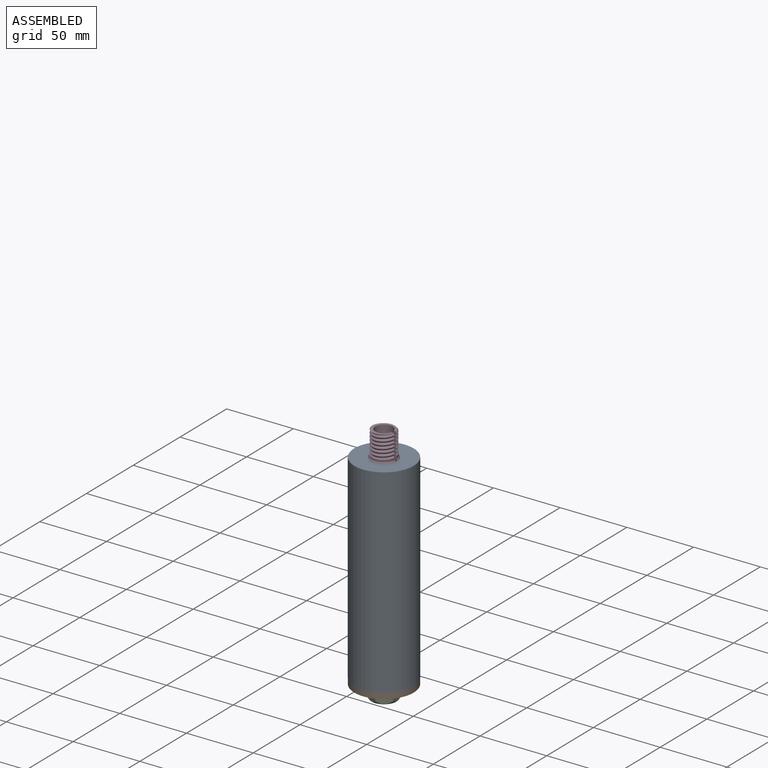
[diagram: assembled view]
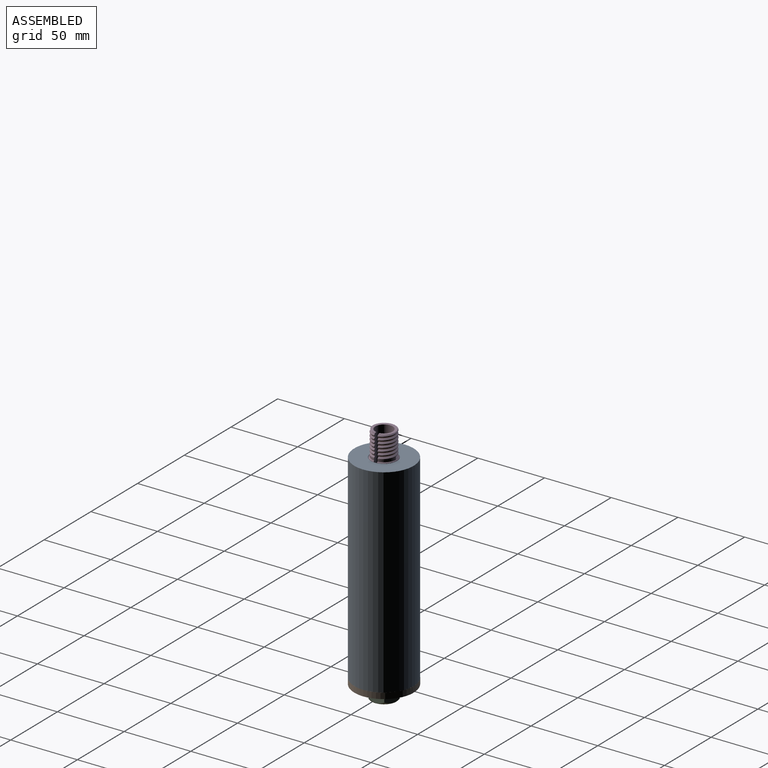
[diagram: assembled view, second angle]
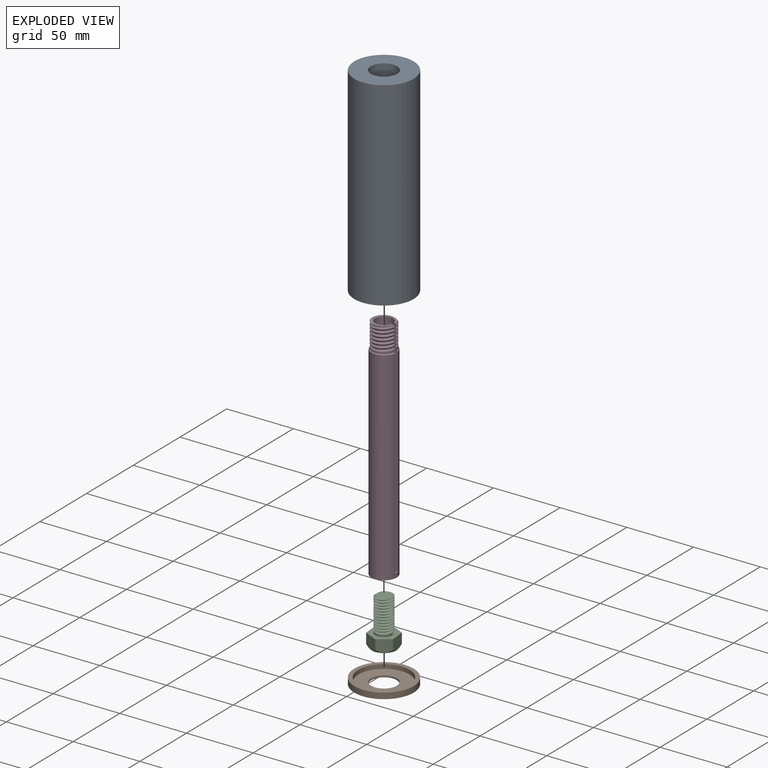
[diagram: exploded view]
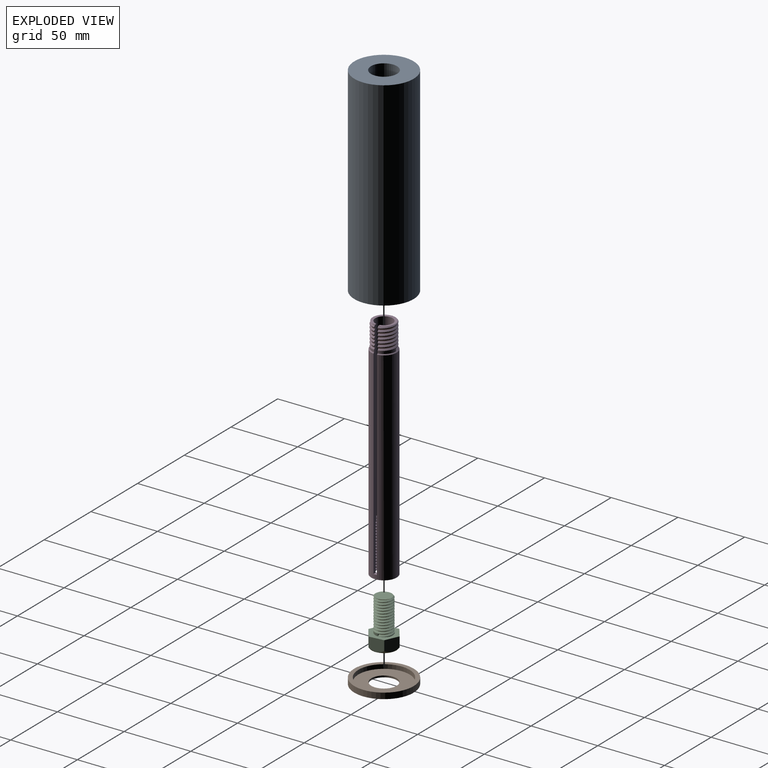
[diagram: exploded view, second angle]
ASSEMBLY  parts=4 mates=3
PART A: 4 faces, bbox 44.5x44.5x149.2 mm
  f0: plane 44.45x44.45mm, normal (0,0,1), area 1251.4mm2, adj f2,f3
  f1: plane 44.45x44.45mm, normal (0,0,-1), area 1251.4mm2, adj f2,f3
  f2: cylinder r=9.78mm len=149.23mm, axis (0,0,-1), area 9168.9mm2, adj f0,f1
  f3: cylinder r=22.23mm len=149.23mm, axis (0,0,-1), area 20838.3mm2, adj f0,f1
PART B: 6 faces, bbox 44.5x44.5x4.4 mm
  f0: cylinder r=19.18mm len=38.36mm, axis (0,0,-1), area 382.6mm2, adj f2,f3
  f1: cylinder r=22.23mm len=44.45mm, axis (0,0,-1), area 620.7mm2, adj f2,f4
  f2: plane 44.45x44.45mm, normal (0,0,1), area 396mm2, adj f0,f1
  f3: plane 38.36x38.36mm, normal (0,0,1), area 870.7mm2, adj f0,f5
  f4: plane 44.45x44.45mm, normal (0,0,-1), area 1266.8mm2, adj f1,f5
  f5: cylinder r=9.53mm len=19.05mm, axis (0,0,-1), area 76mm2, adj f3,f4
PART C: 14 faces, bbox 23x23x37.1 mm
  f0: cylinder r=6.54mm len=25.4mm, axis (0,0,-1), area -39mm2, adj f7,f10,f11,f12,f13
  f1: plane 9.22x8.91mm, normal (-0.59,0.81,0), area 94.7mm2, adj f2,f6,f7,f8
  f2: plane 10.04x9.22mm, normal (0.41,0.91,0), area 94.7mm2, adj f1,f3,f7,f8
  f3: plane 10.94x9.22mm, normal (0.99,0.1,0), area 94.7mm2, adj f2,f4,f7,f8
  f4: plane 9.22x8.91mm, normal (0.59,-0.81,0), area 94.7mm2, adj f3,f5,f7,f8
  f5: plane 10.04x9.22mm, normal (-0.41,-0.91,0), area 94.7mm2, adj f4,f6,f7,f8
  f6: plane 10.94x9.22mm, normal (-0.99,-0.1,0), area 94.7mm2, adj f1,f5,f7,f8
  f7: plane 21.88x20.07mm, normal (0,0,1), area 179.9mm2, adj f0,f1,f2,f3,f4,f5,f6
  f8: revolved ~21.99x21.99mm, area 239.9mm2, adj f1,f2,f3,f4,f5,f6,f9
  f9: plane 18.55x18.55mm, normal (0,0,-1), area 270.2mm2, adj f8
  f10: plane 12.94x12.92mm, normal (0,0,1), area 110.5mm2, adj f0,f12,f13
  f11: plane 1.78x1.37mm, normal (0,1,0), area 1.2mm2, adj f0,f12,f13
  f12: bspline ~26.29x15.1mm, area 762.1mm2, adj f0,f10,f11,f13
  f13: bspline ~25.64x15.1mm, area 742.1mm2, adj f0,f10,f11,f12
PART D: 85 faces, bbox 19.9x21.4x174.7 mm
  f0: cylinder r=9.53mm len=152.4mm, axis (0,0,-1), area 8740.6mm2, adj f20,f77,f82,f83,f84
  f1: plane 17.66x17.6mm, normal (0,0,1), area 88.9mm2, adj f2,f41,f78,f80,f81,f82,f83
  f2: cylinder r=6.54mm len=135.25mm, axis (0,0,-1), area 5176.8mm2, adj f1,f59,f82,f83
  f3: cylinder r=6.54mm len=13.08mm, axis (0,0,-1), area 6.8mm2, adj f58,f76,f82,f83
  f4: cylinder r=6.54mm len=13.08mm, axis (0,0,-1), area 6.8mm2, adj f57,f75,f82,f83
  f5: cylinder r=6.54mm len=13.08mm, axis (0,0,-1), area 6.8mm2, adj f56,f74,f82,f83
  f6: cylinder r=6.54mm len=13.08mm, axis (0,0,-1), area 6.8mm2, adj f55,f73,f82,f83
  f7: cylinder r=6.54mm len=13.08mm, axis (0,0,-1), area 6.8mm2, adj f54,f72,f82,f83
  f8: cylinder r=6.54mm len=13.08mm, axis (0,0,-1), area 6.8mm2, adj f53,f71,f82,f83
  f9: cylinder r=6.54mm len=13.08mm, axis (0,0,-1), area 6.8mm2, adj f52,f70,f82,f83
  f10: cylinder r=6.54mm len=13.08mm, axis (0,0,-1), area 6.8mm2, adj f51,f69,f82,f83
  f11: cylinder r=6.54mm len=13.08mm, axis (0,0,-1), area 6.8mm2, adj f50,f68,f82,f83
  f12: cylinder r=6.54mm len=13.08mm, axis (0,0,-1), area 6.8mm2, adj f49,f67,f82,f83
  f13: cylinder r=6.54mm len=13.08mm, axis (0,0,-1), area 6.8mm2, adj f48,f66,f82,f83
  f14: cylinder r=6.54mm len=13.08mm, axis (0,0,-1), area 6.8mm2, adj f47,f65,f82,f83
  f15: cylinder r=6.54mm len=13.08mm, axis (0,0,-1), area 6.8mm2, adj f46,f64,f82,f83
  f16: cylinder r=6.54mm len=13.08mm, axis (0,0,-1), area 6.8mm2, adj f45,f63,f82,f83
  f17: cylinder r=6.54mm len=13.08mm, axis (0,0,-1), area 6.8mm2, adj f44,f62,f82,f83
  f18: cylinder r=6.54mm len=13.08mm, axis (0,0,-1), area 6.8mm2, adj f43,f61,f82,f83
  f19: cylinder r=6.54mm len=13.08mm, axis (0,0,-1), area 18.1mm2, adj f42,f60,f77,f82
  f20: cone r=8.89mm half-angle=45deg, axis (0,0,-1), area 49.7mm2, adj f0,f21,f22,f82,f83
  f21: cylinder r=8.89mm len=17.78mm, axis (0,0,1), area 37.6mm2, adj f20,f34,f82
  f22: cylinder r=8.89mm len=17.78mm, axis (0,0,1), area 44mm2, adj f20,f33,f40,f79,f82,f83
  f23: cylinder r=8.89mm len=17.78mm, axis (0,0,1), area 20.3mm2, adj f32,f39,f82,f83
  f24: cylinder r=8.89mm len=17.78mm, axis (0,0,1), area 20.3mm2, adj f31,f38,f82,f83
  f25: cylinder r=8.89mm len=17.78mm, axis (0,0,1), area 20.3mm2, adj f30,f37,f82,f83
  f26: cylinder r=8.89mm len=17.78mm, axis (0,0,1), area 20.3mm2, adj f29,f36,f82,f83
  f27: cylinder r=8.89mm len=17.78mm, axis (0,0,1), area 20.3mm2, adj f28,f35,f82,f83
  f28: bspline ~20.53x17.78mm, area 71.3mm2, adj f27,f41,f82,f83
  f29: bspline ~20.53x17.78mm, area 71.3mm2, adj f26,f35,f82,f83
  f30: bspline ~20.53x17.78mm, area 71.3mm2, adj f25,f36,f82,f83
  f31: bspline ~20.53x17.78mm, area 71.3mm2, adj f24,f37,f82,f83
  f32: bspline ~20.53x17.78mm, area 71.3mm2, adj f23,f38,f82,f83
  f33: bspline ~20.53x17.78mm, area 71.3mm2, adj f22,f39,f82,f83
  f34: bspline ~20.53x17.78mm, area 54.4mm2, adj f21,f40,f79,f82
  f35: bspline ~20.53x17.78mm, area 71.4mm2, adj f27,f29,f82,f83
  f36: bspline ~20.53x17.78mm, area 71.4mm2, adj f26,f30,f82,f83
  f37: bspline ~20.53x17.78mm, area 71.4mm2, adj f25,f31,f82,f83
  f38: bspline ~20.53x17.78mm, area 71.4mm2, adj f24,f32,f82,f83
  f39: bspline ~20.53x17.78mm, area 71.4mm2, adj f23,f33,f82,f83
  f40: bspline ~20.53x17.78mm, area 54.4mm2, adj f22,f34,f79,f82
  f41: bspline ~20.53x17.78mm, area 61.7mm2, adj f1,f28,f78,f82,f83
  f42: bspline ~17.55x15.2mm, area 137.5mm2, adj f19,f60,f77,f82
  f43: bspline ~17.55x15.2mm, area 57.9mm2, adj f18,f60,f82,f83
  f44: bspline ~17.55x15.2mm, area 57.9mm2, adj f17,f61,f82,f83
  f45: bspline ~17.55x15.2mm, area 57.9mm2, adj f16,f62,f82,f83
  f46: bspline ~17.55x15.2mm, area 57.9mm2, adj f15,f63,f82,f83
  f47: bspline ~17.55x15.2mm, area 57.9mm2, adj f14,f64,f82,f83
  f48: bspline ~17.55x15.2mm, area 57.9mm2, adj f13,f65,f82,f83
  f49: bspline ~17.55x15.2mm, area 57.9mm2, adj f12,f66,f82,f83
  f50: bspline ~17.55x15.2mm, area 57.9mm2, adj f11,f67,f82,f83
  f51: bspline ~17.55x15.2mm, area 57.9mm2, adj f10,f68,f82,f83
  f52: bspline ~17.55x15.2mm, area 57.9mm2, adj f9,f69,f82,f83
  f53: bspline ~17.55x15.2mm, area 57.9mm2, adj f8,f70,f82,f83
  f54: bspline ~17.55x15.2mm, area 57.9mm2, adj f7,f71,f82,f83
  f55: bspline ~17.55x15.2mm, area 57.9mm2, adj f6,f72,f82,f83
  f56: bspline ~17.55x15.2mm, area 57.9mm2, adj f5,f73,f82,f83
  f57: bspline ~17.55x15.2mm, area 57.9mm2, adj f4,f74,f82,f83
  f58: bspline ~17.55x15.2mm, area 57.9mm2, adj f3,f75,f82,f83
  f59: bspline ~17.55x15.2mm, area 57.9mm2, adj f2,f76,f82,f83
  f60: bspline ~17.55x15.2mm, area 168.5mm2, adj f19,f42,f43,f77,f82,f83,f84
  f61: bspline ~17.55x15.2mm, area 57.9mm2, adj f18,f44,f82,f83
  f62: bspline ~17.55x15.2mm, area 57.9mm2, adj f17,f45,f82,f83
  f63: bspline ~17.55x15.2mm, area 57.9mm2, adj f16,f46,f82,f83
  f64: bspline ~17.55x15.2mm, area 57.9mm2, adj f15,f47,f82,f83
  f65: bspline ~17.55x15.2mm, area 57.9mm2, adj f14,f48,f82,f83
  f66: bspline ~17.55x15.2mm, area 57.9mm2, adj f13,f49,f82,f83
  f67: bspline ~17.55x15.2mm, area 57.9mm2, adj f12,f50,f82,f83
  f68: bspline ~17.55x15.2mm, area 57.9mm2, adj f11,f51,f82,f83
  f69: bspline ~17.55x15.2mm, area 57.9mm2, adj f10,f52,f82,f83
  f70: bspline ~17.55x15.2mm, area 57.9mm2, adj f9,f53,f82,f83
  f71: bspline ~17.55x15.2mm, area 57.9mm2, adj f8,f54,f82,f83
  f72: bspline ~17.55x15.2mm, area 57.9mm2, adj f7,f55,f82,f83
  f73: bspline ~17.55x15.2mm, area 57.9mm2, adj f6,f56,f82,f83
  f74: bspline ~17.55x15.2mm, area 57.9mm2, adj f5,f57,f82,f83
  f75: bspline ~17.55x15.2mm, area 57.9mm2, adj f4,f58,f82,f83
  f76: bspline ~17.55x15.2mm, area 57.9mm2, adj f3,f59,f82,f83
  f77: plane 19.89x19.89mm, normal (0,0,-1), area 129.8mm2, adj f0,f19,f42,f60
  f78: cylinder r=8.89mm len=17.69mm, axis (0,0,1), area 11.7mm2, adj f1,f41,f80,f83
  f79: plane 2.16x0.91mm, normal (-1,0,0), area 1mm2, adj f22,f34,f40
  f80: bspline ~17.78x10.27mm, area 20.1mm2, adj f1,f78,f81,f83
  f81: bspline ~7.7x4.9mm, area 0.2mm2, adj f1,f80,f83
  f82: plane 168.29x3.04mm, normal (0,1,0), area 472.9mm2, adj f0,f1,f2,f3,f4,f5,f6,f7
  f83: plane 168.29x3.04mm, normal (0,-1,0), area 474mm2, adj f0,f1,f2,f3,f4,f5,f6,f7
  f84: plane 3.12x2.56mm, normal (0,0,1), area 7.4mm2, adj f0,f60,f82,f83
PLACE A t=(23.6,6.33,23.63)mm
PLACE B t=(23.6,6.33,23.63)mm
PLACE C t=(23.6,6.33,23.63)mm
PLACE D t=(23.6,6.33,23.63)mm
MATE fastened D.f0 <-> B.f1  axis (0,0,-1) through (23.6,6.33,23.63)mm
MATE fastened A.f3 <-> B.f1  axis (0,0,-1) through (23.6,6.33,26.8)mm
MATE fastened C.f0 <-> B.f1  axis (0,0,1) through (23.6,6.33,22.36)mm
